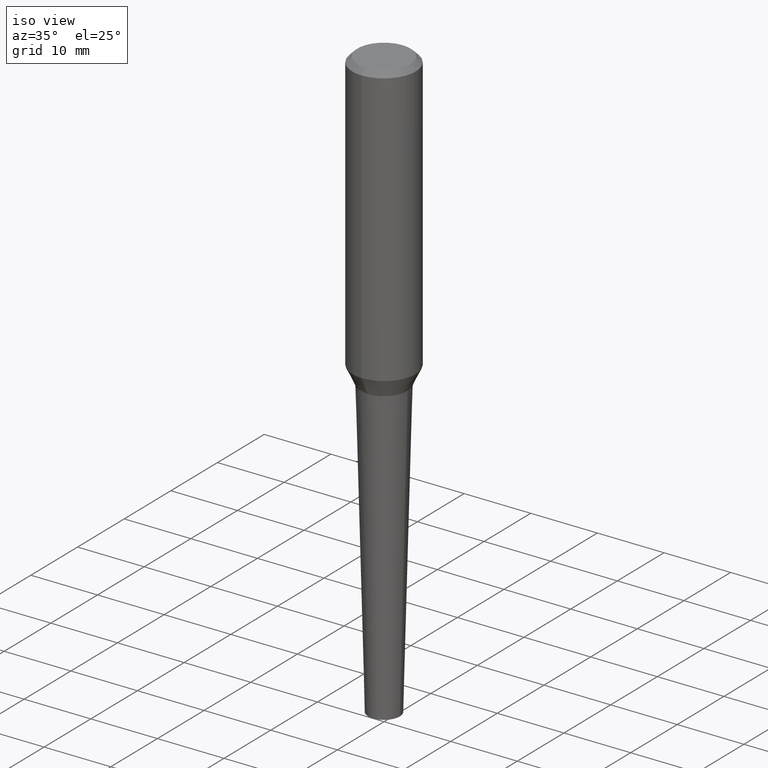
[diagram: clean part render]
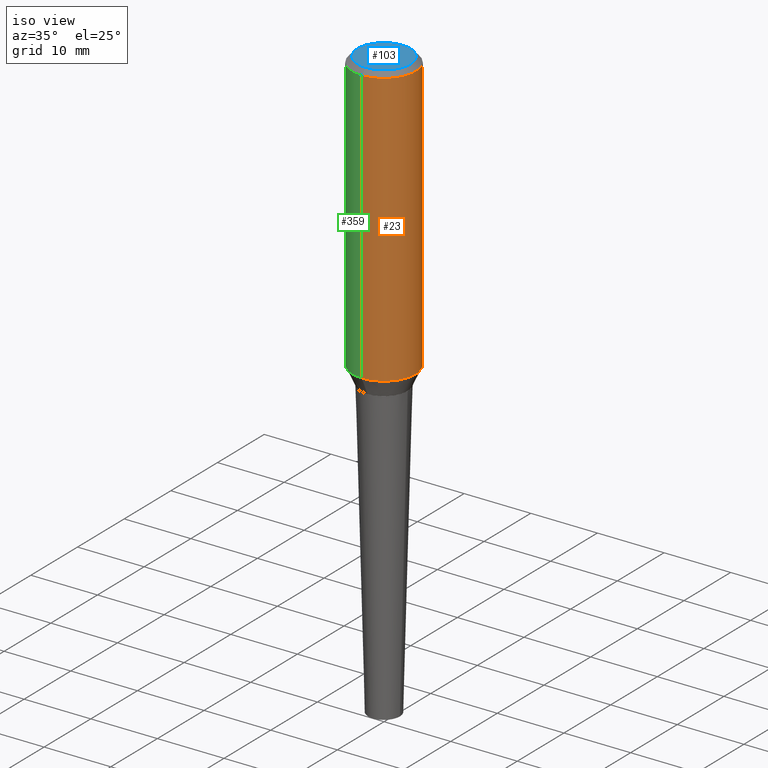
[diagram: same view with three faces highlighted in distinct colors, each labeled with its STEP entity id]
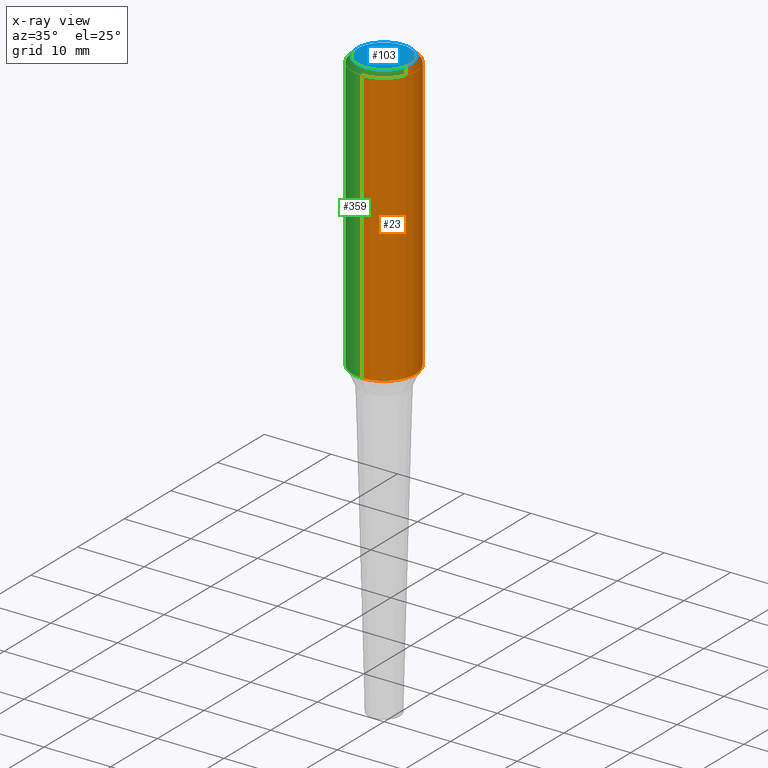
[diagram: x-ray of the same camera — body ghosted, the three highlighted faces saturated]
A machine part, iso view with three faces highlighted in distinct colors.
The next image is the same camera in x-ray (body ghosted, the three faces saturated) — at least one of them is partly hidden behind the body in this view.
Their STEP definitions:

[orange] entity #23 — the highlighted cylindrical surface (partial cylindrical patch) has radius 4.7625 mm, axis along (-0, 0, 1).
#22 = CARTESIAN_POINT ( 'NONE',  ( -1.286343374582167887E-15, -0.1875000000000010270, -0.03124999999999950734 ) ) ;
#23 = ADVANCED_FACE ( 'NONE', ( #107 ), #287, .T. ) ;
#30 = DIRECTION ( 'NONE',  ( -2.680706346625087460E-29, 3.154607792043817320E-15, 1.000000000000000000 ) ) ;
#37 = CARTESIAN_POINT ( 'NONE',  ( -2.560261695147064885E-30, -5.851919173728164913E-16, -0.03125000000000010408 ) ) ;
#43 = ORIENTED_EDGE ( 'NONE', *, *, #262, .F. ) ;
#46 = VERTEX_POINT ( 'NONE', #22 ) ;
#70 = DIRECTION ( 'NONE',  ( -2.680706346625087460E-29, 3.154607792043817320E-15, 1.000000000000000000 ) ) ;
#85 = VERTEX_POINT ( 'NONE', #350 ) ;
#89 = DIRECTION ( 'NONE',  ( -6.982962677686265922E-15, -1.000000000000000000, 3.154607792043817320E-15 ) ) ;
#98 = VECTOR ( 'NONE', #383, 39.37007874015748143 ) ;
#107 = FACE_OUTER_BOUND ( 'NONE', #390, .T. ) ;
#120 = AXIS2_PLACEMENT_3D ( 'NONE', #37, #70, #194 ) ;
#128 = CARTESIAN_POINT ( 'NONE',  ( 1.332267629550185482E-15, 0.1874999999999996947, -5.723651064753783135E-16 ) ) ;
#131 = CIRCLE ( 'NONE', #120, 0.1875000000000004718 ) ;
#133 = CARTESIAN_POINT ( 'NONE',  ( 1.332267629550207373E-15, 0.1874999999999942824, -1.647225283746026170 ) ) ;
#142 = AXIS2_PLACEMENT_3D ( 'NONE', #321, #226, #322 ) ;
#153 = ORIENTED_EDGE ( 'NONE', *, *, #177, .T. ) ;
#162 = DIRECTION ( 'NONE',  ( -2.680706346625087460E-29, 3.154607792043817320E-15, 1.000000000000000000 ) ) ;
#167 = CARTESIAN_POINT ( 'NONE',  ( -1.309305502066179544E-15, -0.1875000000000006661, 6.106128155410544140E-16 ) ) ;
#177 = EDGE_CURVE ( 'NONE', #201, #85, #414, .T. ) ;
#178 = EDGE_CURVE ( 'NONE', #46, #85, #131, .T. ) ;
#179 = VERTEX_POINT ( 'NONE', #323 ) ;
#191 = VECTOR ( 'NONE', #162, 39.37007874015748143 ) ;
#194 = DIRECTION ( 'NONE',  ( -6.982962677686265922E-15, -1.000000000000000000, 3.164390592661096858E-15 ) ) ;
#201 = VERTEX_POINT ( 'NONE', #133 ) ;
#216 = CIRCLE ( 'NONE', #142, 0.1874999999999999445 ) ;
#226 = DIRECTION ( 'NONE',  ( -2.680706346625087460E-29, 3.154607792043817320E-15, 1.000000000000000000 ) ) ;
#233 = ORIENTED_EDGE ( 'NONE', *, *, #178, .F. ) ;
#235 = AXIS2_PLACEMENT_3D ( 'NONE', #246, #30, #89 ) ;
#246 = CARTESIAN_POINT ( 'NONE',  ( -3.397982428467408395E-30, -4.866104238714468673E-16, 1.912385453283800096E-17 ) ) ;
#260 = LINE ( 'NONE', #167, #191 ) ;
#262 = EDGE_CURVE ( 'NONE', #179, #46, #260, .T. ) ;
#287 = CYLINDRICAL_SURFACE ( 'NONE', #235, 0.1875000000000001943 ) ;
#295 = EDGE_CURVE ( 'NONE', #179, #201, #216, .T. ) ;
#298 = ORIENTED_EDGE ( 'NONE', *, *, #295, .T. ) ;
#321 = CARTESIAN_POINT ( 'NONE',  ( 4.075929029612540181E-29, -5.682960139228247443E-15, -1.647225283746025726 ) ) ;
#322 = DIRECTION ( 'NONE',  ( -6.982962677686266711E-15, -1.000000000000000000, 2.913971193241881555E-15 ) ) ;
#323 = CARTESIAN_POINT ( 'NONE',  ( -1.309305502066133790E-15, -0.1875000000000056066, -1.647225283746025060 ) ) ;
#350 = CARTESIAN_POINT ( 'NONE',  ( 1.309305502066175600E-15, 0.1874999999999998890, -0.03125000000000069389 ) ) ;
#383 = DIRECTION ( 'NONE',  ( -2.680706346625087460E-29, 3.154607792043817320E-15, 1.000000000000000000 ) ) ;
#390 = EDGE_LOOP ( 'NONE', ( #298, #153, #233, #43 ) ) ;
#414 = LINE ( 'NONE', #128, #98 ) ;

[blue] entity #103 — the highlighted planar face has unit normal (0, -0, -1).
#7 = ORIENTED_EDGE ( 'NONE', *, *, #218, .T. ) ;
#28 = CIRCLE ( 'NONE', #158, 0.1562500000000003886 ) ;
#65 = DIRECTION ( 'NONE',  ( 6.982962677686265922E-15, 1.000000000000000000, -3.154607792043817320E-15 ) ) ;
#71 = DIRECTION ( 'NONE',  ( -6.982962677686265922E-15, -1.000000000000000000, 3.154607792043816925E-15 ) ) ;
#103 = ADVANCED_FACE ( 'NONE', ( #217 ), #116, .F. ) ;
#109 = AXIS2_PLACEMENT_3D ( 'NONE', #223, #258, #71 ) ;
#112 = ORIENTED_EDGE ( 'NONE', *, *, #225, .T. ) ;
#116 = PLANE ( 'NONE',  #227 ) ;
#117 = VERTEX_POINT ( 'NONE', #122 ) ;
#122 = CARTESIAN_POINT ( 'NONE',  ( 1.200196710227326894E-15, 0.1562499999999999167, -3.833404845704254927E-16 ) ) ;
#158 = AXIS2_PLACEMENT_3D ( 'NONE', #351, #252, #220 ) ;
#170 = CARTESIAN_POINT ( 'NONE',  ( -1.179148093366987707E-15, -0.1562500000000008604, 6.024744504432698109E-16 ) ) ;
#187 = DIRECTION ( 'NONE',  ( 2.680706346625086899E-29, -3.154607792043817320E-15, -1.000000000000000000 ) ) ;
#217 = FACE_OUTER_BOUND ( 'NONE', #280, .T. ) ;
#218 = EDGE_CURVE ( 'NONE', #327, #117, #234, .T. ) ;
#220 = DIRECTION ( 'NONE',  ( -6.982962677686265922E-15, -1.000000000000000000, 3.154607792043816925E-15 ) ) ;
#223 = CARTESIAN_POINT ( 'NONE',  ( -3.397982428467410497E-30, -4.866104238714465715E-16, 1.095669829364221468E-16 ) ) ;
#225 = EDGE_CURVE ( 'NONE', #117, #327, #28, .T. ) ;
#227 = AXIS2_PLACEMENT_3D ( 'NONE', #412, #187, #65 ) ;
#234 = CIRCLE ( 'NONE', #109, 0.1562500000000003886 ) ;
#252 = DIRECTION ( 'NONE',  ( -2.680706346625087460E-29, 3.154607792043817320E-15, 1.000000000000000000 ) ) ;
#258 = DIRECTION ( 'NONE',  ( -2.680706346625087460E-29, 3.154607792043817320E-15, 1.000000000000000000 ) ) ;
#280 = EDGE_LOOP ( 'NONE', ( #112, #7 ) ) ;
#327 = VERTEX_POINT ( 'NONE', #170 ) ;
#351 = CARTESIAN_POINT ( 'NONE',  ( -3.397982428467410497E-30, -4.866104238714465715E-16, 1.095669829364221468E-16 ) ) ;
#412 = CARTESIAN_POINT ( 'NONE',  ( 1.091087918388478385E-15, 0.1562499999999999167, -4.285620487722176581E-16 ) ) ;

[green] entity #359 — the highlighted cylindrical surface (partial cylindrical patch) has radius 4.7625 mm, axis along (-0, 0, 1).
#14 = EDGE_CURVE ( 'NONE', #85, #46, #141, .T. ) ;
#22 = CARTESIAN_POINT ( 'NONE',  ( -1.286343374582167887E-15, -0.1875000000000010270, -0.03124999999999950734 ) ) ;
#41 = DIRECTION ( 'NONE',  ( -6.982962677686266711E-15, -1.000000000000000000, 2.913971193241881555E-15 ) ) ;
#45 = CYLINDRICAL_SURFACE ( 'NONE', #407, 0.1875000000000001943 ) ;
#46 = VERTEX_POINT ( 'NONE', #22 ) ;
#75 = CARTESIAN_POINT ( 'NONE',  ( -3.397982428467408395E-30, -4.866104238714468673E-16, 1.912385453283800096E-17 ) ) ;
#85 = VERTEX_POINT ( 'NONE', #350 ) ;
#98 = VECTOR ( 'NONE', #383, 39.37007874015748143 ) ;
#105 = EDGE_LOOP ( 'NONE', ( #337, #238, #208, #401 ) ) ;
#128 = CARTESIAN_POINT ( 'NONE',  ( 1.332267629550185482E-15, 0.1874999999999996947, -5.723651064753783135E-16 ) ) ;
#133 = CARTESIAN_POINT ( 'NONE',  ( 1.332267629550207373E-15, 0.1874999999999942824, -1.647225283746026170 ) ) ;
#134 = DIRECTION ( 'NONE',  ( -6.982962677686265922E-15, -1.000000000000000000, 3.164390592661096858E-15 ) ) ;
#141 = CIRCLE ( 'NONE', #166, 0.1875000000000004718 ) ;
#145 = FACE_OUTER_BOUND ( 'NONE', #105, .T. ) ;
#162 = DIRECTION ( 'NONE',  ( -2.680706346625087460E-29, 3.154607792043817320E-15, 1.000000000000000000 ) ) ;
#163 = DIRECTION ( 'NONE',  ( -2.680706346625087460E-29, 3.154607792043817320E-15, 1.000000000000000000 ) ) ;
#166 = AXIS2_PLACEMENT_3D ( 'NONE', #263, #391, #134 ) ;
#167 = CARTESIAN_POINT ( 'NONE',  ( -1.309305502066179544E-15, -0.1875000000000006661, 6.106128155410544140E-16 ) ) ;
#177 = EDGE_CURVE ( 'NONE', #201, #85, #414, .T. ) ;
#179 = VERTEX_POINT ( 'NONE', #323 ) ;
#191 = VECTOR ( 'NONE', #162, 39.37007874015748143 ) ;
#199 = DIRECTION ( 'NONE',  ( -6.982962677686265922E-15, -1.000000000000000000, 3.154607792043817320E-15 ) ) ;
#201 = VERTEX_POINT ( 'NONE', #133 ) ;
#208 = ORIENTED_EDGE ( 'NONE', *, *, #262, .T. ) ;
#238 = ORIENTED_EDGE ( 'NONE', *, *, #253, .T. ) ;
#253 = EDGE_CURVE ( 'NONE', #201, #179, #370, .T. ) ;
#260 = LINE ( 'NONE', #167, #191 ) ;
#262 = EDGE_CURVE ( 'NONE', #179, #46, #260, .T. ) ;
#263 = CARTESIAN_POINT ( 'NONE',  ( -2.560261695147064885E-30, -5.851919173728164913E-16, -0.03125000000000010408 ) ) ;
#323 = CARTESIAN_POINT ( 'NONE',  ( -1.309305502066133790E-15, -0.1875000000000056066, -1.647225283746025060 ) ) ;
#337 = ORIENTED_EDGE ( 'NONE', *, *, #177, .F. ) ;
#350 = CARTESIAN_POINT ( 'NONE',  ( 1.309305502066175600E-15, 0.1874999999999998890, -0.03125000000000069389 ) ) ;
#359 = ADVANCED_FACE ( 'NONE', ( #145 ), #45, .T. ) ;
#360 = DIRECTION ( 'NONE',  ( -2.680706346625087460E-29, 3.154607792043817320E-15, 1.000000000000000000 ) ) ;
#370 = CIRCLE ( 'NONE', #384, 0.1874999999999999445 ) ;
#383 = DIRECTION ( 'NONE',  ( -2.680706346625087460E-29, 3.154607792043817320E-15, 1.000000000000000000 ) ) ;
#384 = AXIS2_PLACEMENT_3D ( 'NONE', #386, #163, #41 ) ;
#386 = CARTESIAN_POINT ( 'NONE',  ( 4.075929029612540181E-29, -5.682960139228247443E-15, -1.647225283746025726 ) ) ;
#391 = DIRECTION ( 'NONE',  ( -2.680706346625087460E-29, 3.154607792043817320E-15, 1.000000000000000000 ) ) ;
#401 = ORIENTED_EDGE ( 'NONE', *, *, #14, .F. ) ;
#407 = AXIS2_PLACEMENT_3D ( 'NONE', #75, #360, #199 ) ;
#414 = LINE ( 'NONE', #128, #98 ) ;